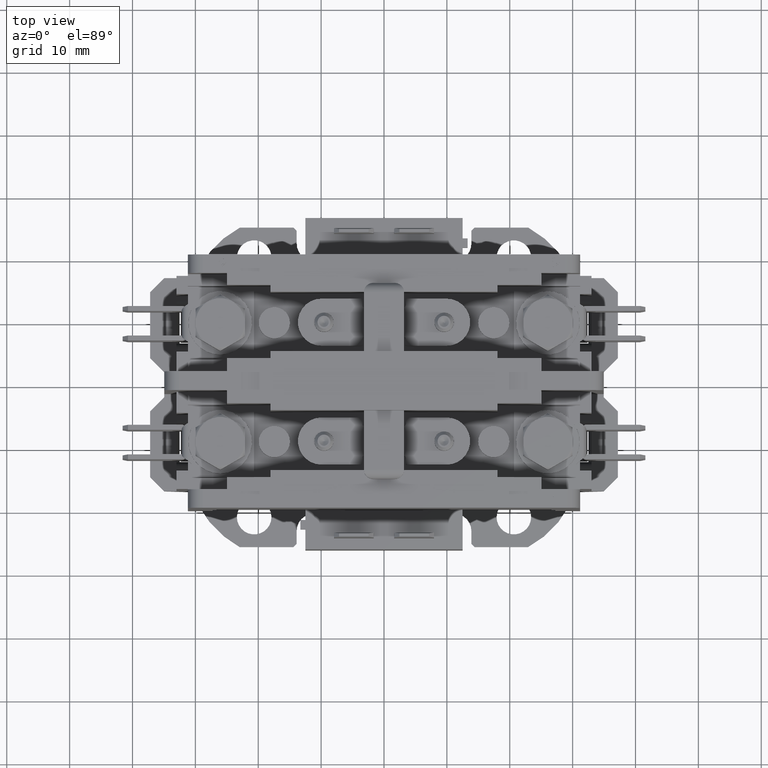
[diagram: clean part render]
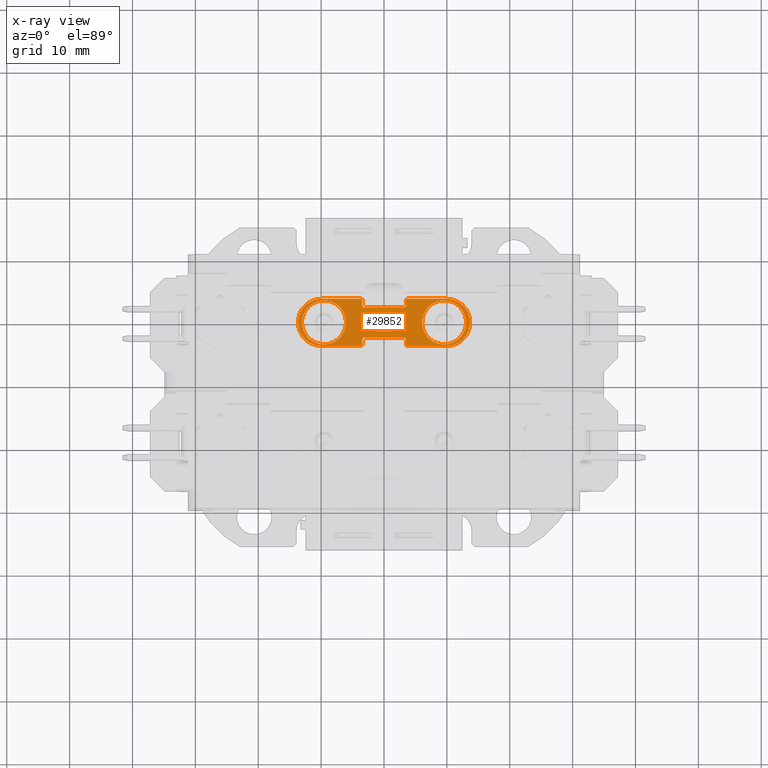
[diagram: x-ray — body ghosted, one internal face saturated and labeled with its STEP entity id]
A machine part, top view, then the same camera in x-ray: the body is ghosted and one INTERNAL B-rep face — a face not visible from any outside direction — is saturated and labeled: STEP entity #29852.
In plain terms, the highlighted planar face has unit normal (0, -0, 1).
Its self-contained STEP definition (entity closure, byte-faithful):
#2890=LINE($,#53252,#5720);
#2894=LINE($,#53264,#5724);
#2899=LINE($,#53279,#5729);
#2903=LINE($,#53291,#5733);
#2909=LINE($,#53306,#5739);
#2910=LINE($,#53312,#5740);
#2911=LINE($,#53318,#5741);
#2912=LINE($,#53321,#5742);
#2913=LINE($,#53325,#5743);
#2914=LINE($,#53328,#5744);
#2915=LINE($,#53332,#5745);
#2916=LINE($,#53336,#5746);
#5720=VECTOR($,#39934,0.64);
#5724=VECTOR($,#39946,0.085);
#5729=VECTOR($,#39959,0.64);
#5733=VECTOR($,#39971,0.085);
#5739=VECTOR($,#39985,0.085);
#5740=VECTOR($,#39990,0.165020000000002);
#5741=VECTOR($,#39995,0.165020000000002);
#5742=VECTOR($,#39998,0.625);
#5743=VECTOR($,#40001,0.625);
#5744=VECTOR($,#40004,0.085);
#5745=VECTOR($,#40007,0.625);
#5746=VECTOR($,#40010,0.625);
#7045=PLANE($,#32328);
#7404=FACE_BOUND($,#10633,.T.);
#7405=FACE_BOUND($,#10634,.T.);
#7406=FACE_BOUND($,#10635,.T.);
#7407=FACE_BOUND($,#10636,.T.);
#10633=EDGE_LOOP($,(#25872));
#10634=EDGE_LOOP($,(#25873));
#10635=EDGE_LOOP($,(#25874,#25875,#25876,#25877,#25878,#25879));
#10636=EDGE_LOOP($,(#25880,#25881,#25882,#25883,#25884,#25885,#25886,#25887,
#25888,#25889,#25890,#25891,#25892,#25893,#25894,#25895,#25896,#25897,#25898,
#25899));
#11241=CIRCLE($,#30782,0.35);
#11253=CIRCLE($,#30806,0.35);
#11644=CIRCLE($,#32309,0.025);
#11646=CIRCLE($,#32313,0.025);
#11648=CIRCLE($,#32317,0.025);
#11650=CIRCLE($,#32321,0.025);
#11653=CIRCLE($,#32326,0.025);
#11654=CIRCLE($,#32329,0.13999);
#11655=CIRCLE($,#32330,0.13999);
#11656=CIRCLE($,#32331,0.13999);
#11657=CIRCLE($,#32332,0.13999);
#11658=CIRCLE($,#32333,0.375);
#11659=CIRCLE($,#32334,0.025);
#11660=CIRCLE($,#32335,0.025);
#11661=CIRCLE($,#32336,0.375);
#11662=CIRCLE($,#32337,0.025);
#12910=VERTEX_POINT($,#43619);
#12922=VERTEX_POINT($,#43655);
#14266=VERTEX_POINT($,#53242);
#14267=VERTEX_POINT($,#53243);
#14270=VERTEX_POINT($,#53251);
#14272=VERTEX_POINT($,#53257);
#14274=VERTEX_POINT($,#53263);
#14276=VERTEX_POINT($,#53269);
#14277=VERTEX_POINT($,#53270);
#14280=VERTEX_POINT($,#53278);
#14282=VERTEX_POINT($,#53284);
#14284=VERTEX_POINT($,#53290);
#14288=VERTEX_POINT($,#53299);
#14289=VERTEX_POINT($,#53301);
#14290=VERTEX_POINT($,#53308);
#14291=VERTEX_POINT($,#53309);
#14292=VERTEX_POINT($,#53311);
#14293=VERTEX_POINT($,#53313);
#14294=VERTEX_POINT($,#53315);
#14295=VERTEX_POINT($,#53317);
#14296=VERTEX_POINT($,#53320);
#14297=VERTEX_POINT($,#53322);
#14298=VERTEX_POINT($,#53324);
#14299=VERTEX_POINT($,#53327);
#14300=VERTEX_POINT($,#53329);
#14301=VERTEX_POINT($,#53331);
#14302=VERTEX_POINT($,#53333);
#14303=VERTEX_POINT($,#53335);
#15845=EDGE_CURVE($,#12910,#12910,#11241,.T.);
#15857=EDGE_CURVE($,#12922,#12922,#11253,.T.);
#18203=EDGE_CURVE($,#14266,#14267,#11644,.T.);
#18207=EDGE_CURVE($,#14270,#14267,#2890,.T.);
#18210=EDGE_CURVE($,#14270,#14272,#11646,.T.);
#18213=EDGE_CURVE($,#14274,#14272,#2894,.T.);
#18216=EDGE_CURVE($,#14276,#14277,#11648,.T.);
#18220=EDGE_CURVE($,#14280,#14277,#2899,.T.);
#18223=EDGE_CURVE($,#14280,#14282,#11650,.T.);
#18226=EDGE_CURVE($,#14284,#14282,#2903,.T.);
#18231=EDGE_CURVE($,#14288,#14289,#11653,.T.);
#18234=EDGE_CURVE($,#14276,#14289,#2909,.T.);
#18235=EDGE_CURVE($,#14290,#14291,#11654,.T.);
#18236=EDGE_CURVE($,#14292,#14290,#2910,.T.);
#18237=EDGE_CURVE($,#14293,#14292,#11655,.T.);
#18238=EDGE_CURVE($,#14294,#14293,#11656,.T.);
#18239=EDGE_CURVE($,#14295,#14294,#2911,.T.);
#18240=EDGE_CURVE($,#14291,#14295,#11657,.T.);
#18241=EDGE_CURVE($,#14288,#14296,#2912,.T.);
#18242=EDGE_CURVE($,#14296,#14297,#11658,.T.);
#18243=EDGE_CURVE($,#14297,#14298,#2913,.T.);
#18244=EDGE_CURVE($,#14274,#14298,#11659,.T.);
#18245=EDGE_CURVE($,#14266,#14299,#2914,.T.);
#18246=EDGE_CURVE($,#14300,#14299,#11660,.T.);
#18247=EDGE_CURVE($,#14300,#14301,#2915,.T.);
#18248=EDGE_CURVE($,#14301,#14302,#11661,.T.);
#18249=EDGE_CURVE($,#14302,#14303,#2916,.T.);
#18250=EDGE_CURVE($,#14284,#14303,#11662,.T.);
#25872=ORIENTED_EDGE($,*,*,#15845,.T.);
#25873=ORIENTED_EDGE($,*,*,#15857,.T.);
#25874=ORIENTED_EDGE($,*,*,#18235,.F.);
#25875=ORIENTED_EDGE($,*,*,#18236,.F.);
#25876=ORIENTED_EDGE($,*,*,#18237,.F.);
#25877=ORIENTED_EDGE($,*,*,#18238,.F.);
#25878=ORIENTED_EDGE($,*,*,#18239,.F.);
#25879=ORIENTED_EDGE($,*,*,#18240,.F.);
#25880=ORIENTED_EDGE($,*,*,#18231,.F.);
#25881=ORIENTED_EDGE($,*,*,#18241,.T.);
#25882=ORIENTED_EDGE($,*,*,#18242,.T.);
#25883=ORIENTED_EDGE($,*,*,#18243,.T.);
#25884=ORIENTED_EDGE($,*,*,#18244,.F.);
#25885=ORIENTED_EDGE($,*,*,#18213,.T.);
#25886=ORIENTED_EDGE($,*,*,#18210,.F.);
#25887=ORIENTED_EDGE($,*,*,#18207,.T.);
#25888=ORIENTED_EDGE($,*,*,#18203,.F.);
#25889=ORIENTED_EDGE($,*,*,#18245,.T.);
#25890=ORIENTED_EDGE($,*,*,#18246,.F.);
#25891=ORIENTED_EDGE($,*,*,#18247,.T.);
#25892=ORIENTED_EDGE($,*,*,#18248,.T.);
#25893=ORIENTED_EDGE($,*,*,#18249,.T.);
#25894=ORIENTED_EDGE($,*,*,#18250,.F.);
#25895=ORIENTED_EDGE($,*,*,#18226,.T.);
#25896=ORIENTED_EDGE($,*,*,#18223,.F.);
#25897=ORIENTED_EDGE($,*,*,#18220,.T.);
#25898=ORIENTED_EDGE($,*,*,#18216,.F.);
#25899=ORIENTED_EDGE($,*,*,#18234,.T.);
#29852=ADVANCED_FACE($,(#7404,#7405,#7406,#7407),#7045,.F.);
#30782=AXIS2_PLACEMENT_3D($,#43620,#35070,#35071);
#30806=AXIS2_PLACEMENT_3D($,#43656,#35118,#35119);
#32309=AXIS2_PLACEMENT_3D($,#53244,#39926,#39927);
#32313=AXIS2_PLACEMENT_3D($,#53258,#39939,#39940);
#32317=AXIS2_PLACEMENT_3D($,#53271,#39951,#39952);
#32321=AXIS2_PLACEMENT_3D($,#53285,#39964,#39965);
#32326=AXIS2_PLACEMENT_3D($,#53302,#39979,#39980);
#32328=AXIS2_PLACEMENT_3D($,#53307,#39986,#39987);
#32329=AXIS2_PLACEMENT_3D($,#53310,#39988,#39989);
#32330=AXIS2_PLACEMENT_3D($,#53314,#39991,#39992);
#32331=AXIS2_PLACEMENT_3D($,#53316,#39993,#39994);
#32332=AXIS2_PLACEMENT_3D($,#53319,#39996,#39997);
#32333=AXIS2_PLACEMENT_3D($,#53323,#39999,#40000);
#32334=AXIS2_PLACEMENT_3D($,#53326,#40002,#40003);
#32335=AXIS2_PLACEMENT_3D($,#53330,#40005,#40006);
#32336=AXIS2_PLACEMENT_3D($,#53334,#40008,#40009);
#32337=AXIS2_PLACEMENT_3D($,#53337,#40011,#40012);
#35070=DIRECTION('center_axis',(5.84926973138804E-063,-6.06693767979517E-033,
1.));
#35071=DIRECTION('ref_axis',(0.639277376786141,-0.768976225594414,2.30131302454269E-018));
#35118=DIRECTION('center_axis',(5.84926973138804E-063,-6.06693767979517E-033,
1.));
#35119=DIRECTION('ref_axis',(0.228151776263368,-0.973625578437558,1.44476744490634E-018));
#39926=DIRECTION('center_axis',(-5.84926973138804E-063,6.06693767979517E-033,
-1.));
#39927=DIRECTION('ref_axis',(-0.707106781186547,0.707106781186547,4.28997277441934E-033));
#39934=DIRECTION($,(-1.,-6.12323399573677E-017,-3.71492790509375E-049));
#39939=DIRECTION('center_axis',(-5.84926973138804E-063,6.06693767979517E-033,
-1.));
#39940=DIRECTION('ref_axis',(0.707106781186547,0.707106781186547,4.28997277441934E-033));
#39946=DIRECTION($,(-6.12323399573677E-017,1.,6.06693767979517E-033));
#39951=DIRECTION('center_axis',(-5.84926973138804E-063,6.06693767979517E-033,
-1.));
#39952=DIRECTION('ref_axis',(0.707106781186547,-0.707106781186547,-4.28997277441934E-033));
#39959=DIRECTION($,(1.,6.12323399573677E-017,3.71492790509375E-049));
#39964=DIRECTION('center_axis',(-5.84926973138804E-063,6.06693767979517E-033,
-1.));
#39965=DIRECTION('ref_axis',(-0.707106781186547,-0.707106781186547,-4.28997277441934E-033));
#39971=DIRECTION($,(6.12323399573677E-017,-1.,-6.06693767979517E-033));
#39979=DIRECTION('center_axis',(5.84926973138804E-063,-6.06693767979517E-033,
1.));
#39980=DIRECTION('ref_axis',(-0.707106781186547,0.707106781186547,4.28997277441934E-033));
#39985=DIRECTION($,(-6.12323399573677E-017,1.,6.06693767979517E-033));
#39986=DIRECTION('center_axis',(5.84926973138804E-063,-6.06693767979517E-033,
1.));
#39987=DIRECTION('ref_axis',(6.12323399573677E-017,-1.,0.));
#39988=DIRECTION('center_axis',(-5.84926973138804E-063,6.06693767979517E-033,
-1.));
#39989=DIRECTION('ref_axis',(-0.707106781186548,-0.707106781186548,-4.28997277441934E-033));
#39990=DIRECTION($,(-1.,2.62989121991451E-015,1.59553861358618E-047));
#39991=DIRECTION('center_axis',(-5.84926973138804E-063,6.06693767979517E-033,
-1.));
#39992=DIRECTION('ref_axis',(0.707106781186549,-0.707106781186546,-4.28997277441933E-033));
#39993=DIRECTION('center_axis',(-5.84926973138804E-063,6.06693767979517E-033,
-1.));
#39994=DIRECTION('ref_axis',(0.707106781186546,0.707106781186549,4.28997277441935E-033));
#39995=DIRECTION($,(1.,-2.62989121991451E-015,-1.59553861358618E-047));
#39996=DIRECTION('center_axis',(-5.84926973138804E-063,6.06693767979517E-033,
-1.));
#39997=DIRECTION('ref_axis',(-0.707106781186548,0.707106781186547,4.28997277441934E-033));
#39998=DIRECTION($,(1.,-2.41694311676444E-017,-1.46634432650203E-049));
#39999=DIRECTION('center_axis',(-5.84926973138804E-063,6.06693767979517E-033,
-1.));
#40000=DIRECTION('ref_axis',(-6.12323399573677E-017,1.,6.06693767979517E-033));
#40001=DIRECTION($,(-1.,-1.4663411108238E-016,-8.89620013668954E-049));
#40002=DIRECTION('center_axis',(5.84926973138804E-063,-6.06693767979517E-033,
1.));
#40003=DIRECTION('ref_axis',(-0.707106781186546,-0.707106781186549,-4.28997277441935E-033));
#40004=DIRECTION($,(6.12323399573677E-017,-1.,-6.06693767979517E-033));
#40005=DIRECTION('center_axis',(5.84926973138804E-063,-6.06693767979517E-033,
1.));
#40006=DIRECTION('ref_axis',(0.707106781186547,-0.707106781186547,-4.28997277441934E-033));
#40007=DIRECTION($,(-1.,2.41694311676444E-017,1.46634432650203E-049));
#40008=DIRECTION('center_axis',(-5.84926973138804E-063,6.06693767979517E-033,
-1.));
#40009=DIRECTION('ref_axis',(6.12323399573677E-017,-1.,-6.06693767979517E-033));
#40010=DIRECTION($,(1.,1.4663411108238E-016,8.89620013668954E-049));
#40011=DIRECTION('center_axis',(5.84926973138804E-063,-6.06693767979517E-033,
1.));
#40012=DIRECTION('ref_axis',(0.707106781186546,0.707106781186549,4.28997277441935E-033));
#43619=CARTESIAN_POINT('',(1.17874708187515,0.675858321041955,4.97474408694193));
#43620=CARTESIAN_POINT('Origin',(0.955,0.945,4.97474408694193));
#43655=CARTESIAN_POINT('',(-0.875146878307822,0.604231047546854,4.97474408694193));
#43656=CARTESIAN_POINT('Origin',(-0.955000000000001,0.945,4.97474408694193));
#53242=CARTESIAN_POINT('',(-0.345,0.68,4.97474408694193));
#53243=CARTESIAN_POINT('',(-0.32,0.705,4.97474408694193));
#53244=CARTESIAN_POINT('Origin',(-0.32,0.68,4.97474408694193));
#53251=CARTESIAN_POINT('',(0.32,0.705,4.97474408694193));
#53252=CARTESIAN_POINT($,(0.345,0.705,4.97474408694193));
#53257=CARTESIAN_POINT('',(0.345,0.68,4.97474408694193));
#53258=CARTESIAN_POINT('Origin',(0.32,0.68,4.97474408694193));
#53263=CARTESIAN_POINT('',(0.345,0.595,4.97474408694193));
#53264=CARTESIAN_POINT($,(0.345,0.57,4.97474408694193));
#53269=CARTESIAN_POINT('',(0.345,1.21,4.97474408694193));
#53270=CARTESIAN_POINT('',(0.32,1.185,4.97474408694193));
#53271=CARTESIAN_POINT('Origin',(0.32,1.21,4.97474408694193));
#53278=CARTESIAN_POINT('',(-0.32,1.185,4.97474408694193));
#53279=CARTESIAN_POINT($,(-0.345,1.185,4.97474408694193));
#53284=CARTESIAN_POINT('',(-0.345,1.21,4.97474408694193));
#53285=CARTESIAN_POINT('Origin',(-0.32,1.21,4.97474408694193));
#53290=CARTESIAN_POINT('',(-0.345,1.295,4.97474408694193));
#53291=CARTESIAN_POINT($,(-0.345,1.32,4.97474408694193));
#53299=CARTESIAN_POINT('',(0.37,1.32,4.97474408694193));
#53301=CARTESIAN_POINT('',(0.345,1.295,4.97474408694193));
#53302=CARTESIAN_POINT('Origin',(0.37,1.295,4.97474408694193));
#53306=CARTESIAN_POINT($,(0.345,1.185,4.97474408694193));
#53307=CARTESIAN_POINT('Origin',(3.02957921743464E-016,0.945,4.97474408694193));
#53308=CARTESIAN_POINT('',(-0.082510000000001,0.805,4.97474408694193));
#53309=CARTESIAN_POINT('',(-0.222500000000001,0.945000000000444,4.97474408694193));
#53310=CARTESIAN_POINT('Origin',(-0.082510000000001,0.94499,4.97474408694193));
#53311=CARTESIAN_POINT('',(0.0825100000000009,0.805,4.97474408694193));
#53312=CARTESIAN_POINT($,(-0.0412550000000006,0.805000000000001,4.97474408694193));
#53313=CARTESIAN_POINT('',(0.222500000000001,0.944999999999556,4.97474408694193));
#53314=CARTESIAN_POINT('Origin',(0.0825100000000009,0.94499,4.97474408694193));
#53315=CARTESIAN_POINT('',(0.0825100000000009,1.085,4.97474408694193));
#53316=CARTESIAN_POINT('Origin',(0.0825100000000009,0.94501,4.97474408694193));
#53317=CARTESIAN_POINT('',(-0.0825100000000009,1.085,4.97474408694193));
#53318=CARTESIAN_POINT($,(0.0412550000000008,1.085,4.97474408694193));
#53319=CARTESIAN_POINT('Origin',(-0.082510000000001,0.945010000000001,4.97474408694193));
#53320=CARTESIAN_POINT('',(0.995,1.32,4.97474408694193));
#53321=CARTESIAN_POINT($,(0.345,1.32,4.97474408694193));
#53322=CARTESIAN_POINT('',(0.995,0.57,4.97474408694193));
#53323=CARTESIAN_POINT('Origin',(0.995,0.945,4.97474408694193));
#53324=CARTESIAN_POINT('',(0.37,0.57,4.97474408694193));
#53325=CARTESIAN_POINT($,(0.995,0.57,4.97474408694193));
#53326=CARTESIAN_POINT('Origin',(0.37,0.595,4.97474408694193));
#53327=CARTESIAN_POINT('',(-0.345,0.595,4.97474408694193));
#53328=CARTESIAN_POINT($,(-0.345,0.705,4.97474408694193));
#53329=CARTESIAN_POINT('',(-0.37,0.57,4.97474408694193));
#53330=CARTESIAN_POINT('Origin',(-0.37,0.595,4.97474408694193));
#53331=CARTESIAN_POINT('',(-0.995,0.57,4.97474408694193));
#53332=CARTESIAN_POINT($,(-0.345,0.57,4.97474408694193));
#53333=CARTESIAN_POINT('',(-0.995,1.32,4.97474408694193));
#53334=CARTESIAN_POINT('Origin',(-0.995,0.945,4.97474408694193));
#53335=CARTESIAN_POINT('',(-0.37,1.32,4.97474408694193));
#53336=CARTESIAN_POINT($,(-0.995,1.32,4.97474408694193));
#53337=CARTESIAN_POINT('Origin',(-0.37,1.295,4.97474408694193));